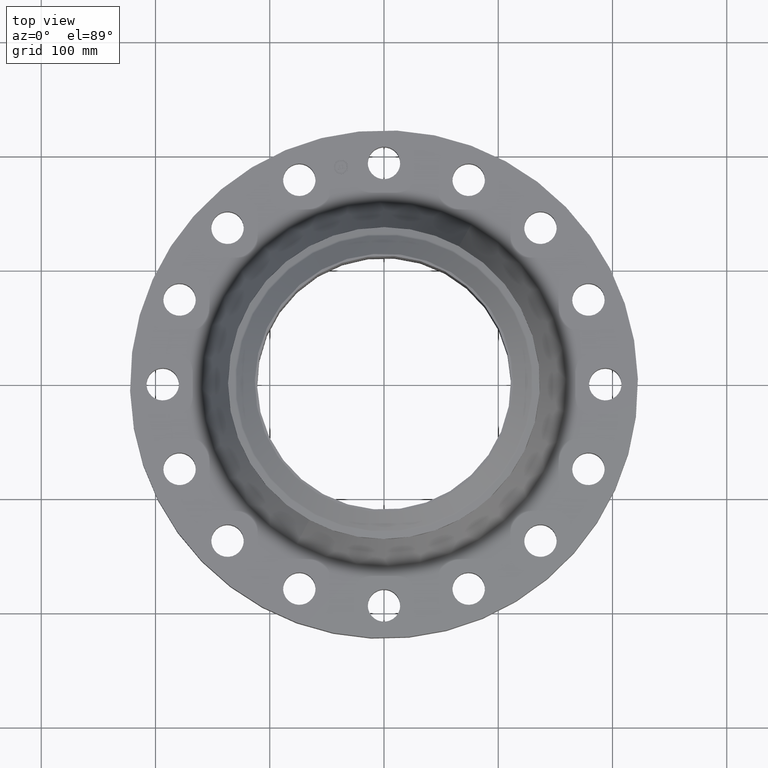
[diagram: clean part render]
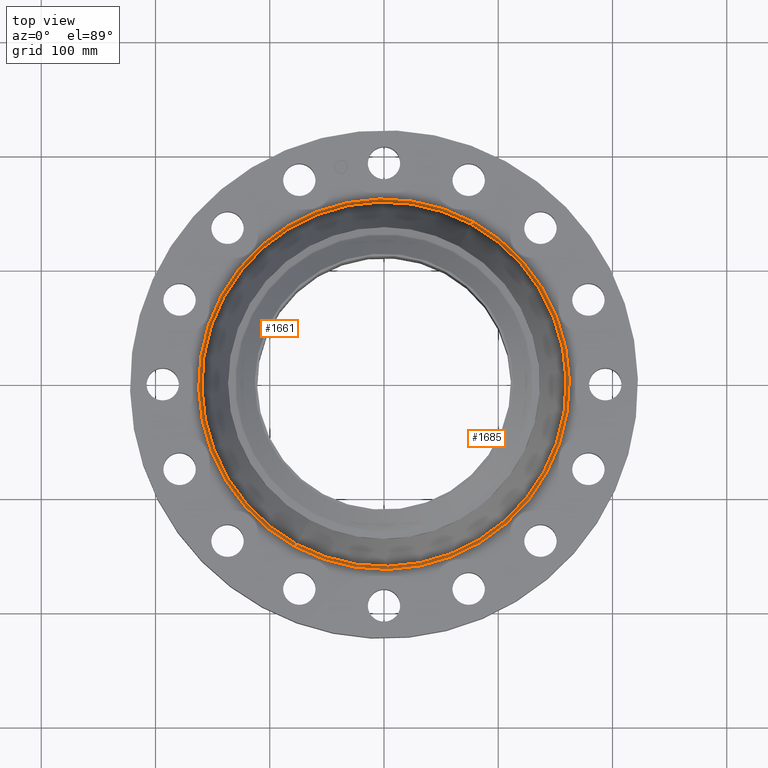
[diagram: same view with one multi-face feature highlighted, each face labeled with its STEP entity id]
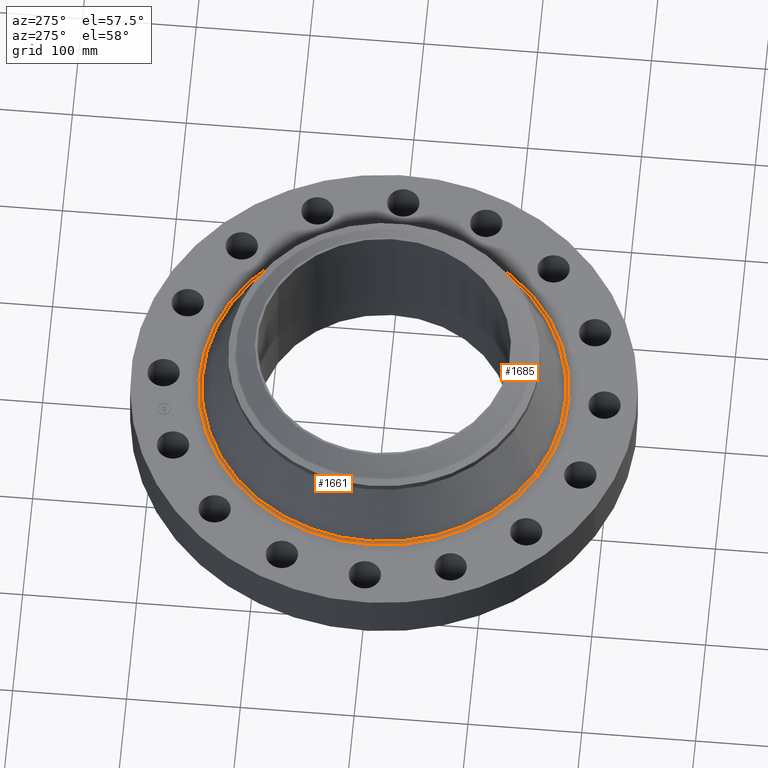
[diagram: same view with one multi-face feature highlighted, each face labeled with its STEP entity id]
A machine part, top view. The highlighted faces form ONE feature: a constant-radius fillet chain: 2 tangent blend faces with common blend radius 3.048 mm. The faces share edges in the B-rep.
A second angle (auxiliary view) of the same feature is appended — it is thin or edge-on in the first view.
Their STEP definitions:
[1] entity #1661 (Torus):
#489=AXIS2_PLACEMENT_3D('Circle Axis2P3D',#487,#488,$) ;
#1634=AXIS2_PLACEMENT_3D('Torus Axis2P3D',#1631,#1632,#1633) ;
#1638=AXIS2_PLACEMENT_3D('Circle Axis2P3D',#1636,#1637,$) ;
#1645=AXIS2_PLACEMENT_3D('Circle Axis2P3D',#1643,#1644,$) ;
#1652=AXIS2_PLACEMENT_3D('Circle Axis2P3D',#1650,#1651,$) ;
#487=CARTESIAN_POINT('Axis2P3D Location',(4.36664877485E-011,-3.05208876545E-011,1.81000000001)) ;
#491=CARTESIAN_POINT('Vertex',(-3.06143875276,-5.6039260477,1.81000000001)) ;
#493=CARTESIAN_POINT('Vertex',(3.06143875276,5.6039260477,1.81000000001)) ;
#1631=CARTESIAN_POINT('Axis2P3D Location',(0.,0.,1.93000000001)) ;
#1636=CARTESIAN_POINT('Axis2P3D Location',(-3.06143875276,-5.6039260477,1.93000000001)) ;
#1640=CARTESIAN_POINT('Vertex',(-3.00953413116,-5.50891527516,1.87824226282)) ;
#1643=CARTESIAN_POINT('Axis2P3D Location',(0.,0.,1.87824226282)) ;
#1647=CARTESIAN_POINT('Vertex',(3.00953413116,5.50891527516,1.87824226282)) ;
#1650=CARTESIAN_POINT('Axis2P3D Location',(3.06143875276,5.6039260477,1.93000000001)) ;
#488=DIRECTION('Axis2P3D Direction',(0.,0.,-0.0393700787402)) ;
#1632=DIRECTION('Axis2P3D Direction',(0.,0.,-0.0393700787402)) ;
#1633=DIRECTION('Axis2P3D XDirection',(-0.0188750212049,-0.0345504945626,0.)) ;
#1637=DIRECTION('Axis2P3D Direction',(0.0345504945626,-0.0188750212049,0.)) ;
#1644=DIRECTION('Axis2P3D Direction',(-0.,0.,-0.0393700787402)) ;
#1651=DIRECTION('Axis2P3D Direction',(-0.0345504945626,0.0188750212049,0.)) ;
#1656=ORIENTED_EDGE('',*,*,#495,.F.) ;
#1657=ORIENTED_EDGE('',*,*,#1642,.T.) ;
#1658=ORIENTED_EDGE('',*,*,#1649,.T.) ;
#1659=ORIENTED_EDGE('',*,*,#1654,.F.) ;
#1661=ADVANCED_FACE('PartBody',(#1660),#1635,.F.) ;
#490=CIRCLE('generated circle',#489,6.38563970054) ;
#1639=CIRCLE('generated circle',#1638,0.12) ;
#1646=CIRCLE('generated circle',#1645,6.27737550219) ;
#1653=CIRCLE('generated circle',#1652,0.12) ;
#1635=TOROIDAL_SURFACE('homeo Torus',#1634,6.38563970053,0.12) ;
#495=EDGE_CURVE('',#492,#494,#490,.T.) ;
#1642=EDGE_CURVE('',#492,#1641,#1639,.T.) ;
#1649=EDGE_CURVE('',#1641,#1648,#1646,.T.) ;
#1654=EDGE_CURVE('',#494,#1648,#1653,.T.) ;
#1655=EDGE_LOOP('',(#1656,#1657,#1658,#1659)) ;
#1660=FACE_OUTER_BOUND('',#1655,.T.) ;
#492=VERTEX_POINT('',#491) ;
#494=VERTEX_POINT('',#493) ;
#1641=VERTEX_POINT('',#1640) ;
#1648=VERTEX_POINT('',#1647) ;
[2] entity #1685 (Torus):
#498=AXIS2_PLACEMENT_3D('Circle Axis2P3D',#496,#497,$) ;
#1638=AXIS2_PLACEMENT_3D('Circle Axis2P3D',#1636,#1637,$) ;
#1652=AXIS2_PLACEMENT_3D('Circle Axis2P3D',#1650,#1651,$) ;
#1672=AXIS2_PLACEMENT_3D('Torus Axis2P3D',#1669,#1670,#1671) ;
#1676=AXIS2_PLACEMENT_3D('Circle Axis2P3D',#1674,#1675,$) ;
#491=CARTESIAN_POINT('Vertex',(-3.06143875276,-5.6039260477,1.81000000001)) ;
#493=CARTESIAN_POINT('Vertex',(3.06143875276,5.6039260477,1.81000000001)) ;
#496=CARTESIAN_POINT('Axis2P3D Location',(-4.36664877485E-011,1.71873014508E-011,1.81000000001)) ;
#1636=CARTESIAN_POINT('Axis2P3D Location',(-3.06143875276,-5.6039260477,1.93000000001)) ;
#1640=CARTESIAN_POINT('Vertex',(-3.00953413116,-5.50891527516,1.87824226282)) ;
#1647=CARTESIAN_POINT('Vertex',(3.00953413116,5.50891527516,1.87824226282)) ;
#1650=CARTESIAN_POINT('Axis2P3D Location',(3.06143875276,5.6039260477,1.93000000001)) ;
#1669=CARTESIAN_POINT('Axis2P3D Location',(0.,0.,1.93000000001)) ;
#1674=CARTESIAN_POINT('Axis2P3D Location',(0.,0.,1.87824226282)) ;
#497=DIRECTION('Axis2P3D Direction',(0.,0.,-0.0393700787402)) ;
#1637=DIRECTION('Axis2P3D Direction',(0.0345504945626,-0.0188750212049,0.)) ;
#1651=DIRECTION('Axis2P3D Direction',(-0.0345504945626,0.0188750212049,0.)) ;
#1670=DIRECTION('Axis2P3D Direction',(0.,0.,-0.0393700787402)) ;
#1671=DIRECTION('Axis2P3D XDirection',(0.0188750212049,0.0345504945626,0.)) ;
#1675=DIRECTION('Axis2P3D Direction',(-0.,0.,-0.0393700787402)) ;
#1680=ORIENTED_EDGE('',*,*,#500,.F.) ;
#1681=ORIENTED_EDGE('',*,*,#1654,.T.) ;
#1682=ORIENTED_EDGE('',*,*,#1678,.T.) ;
#1683=ORIENTED_EDGE('',*,*,#1642,.F.) ;
#1685=ADVANCED_FACE('PartBody',(#1684),#1673,.F.) ;
#499=CIRCLE('generated circle',#498,6.38563970054) ;
#1639=CIRCLE('generated circle',#1638,0.12) ;
#1653=CIRCLE('generated circle',#1652,0.12) ;
#1677=CIRCLE('generated circle',#1676,6.27737550219) ;
#1673=TOROIDAL_SURFACE('homeo Torus',#1672,6.38563970053,0.12) ;
#500=EDGE_CURVE('',#494,#492,#499,.T.) ;
#1642=EDGE_CURVE('',#492,#1641,#1639,.T.) ;
#1654=EDGE_CURVE('',#494,#1648,#1653,.T.) ;
#1678=EDGE_CURVE('',#1648,#1641,#1677,.T.) ;
#1679=EDGE_LOOP('',(#1680,#1681,#1682,#1683)) ;
#1684=FACE_OUTER_BOUND('',#1679,.T.) ;
#492=VERTEX_POINT('',#491) ;
#494=VERTEX_POINT('',#493) ;
#1641=VERTEX_POINT('',#1640) ;
#1648=VERTEX_POINT('',#1647) ;